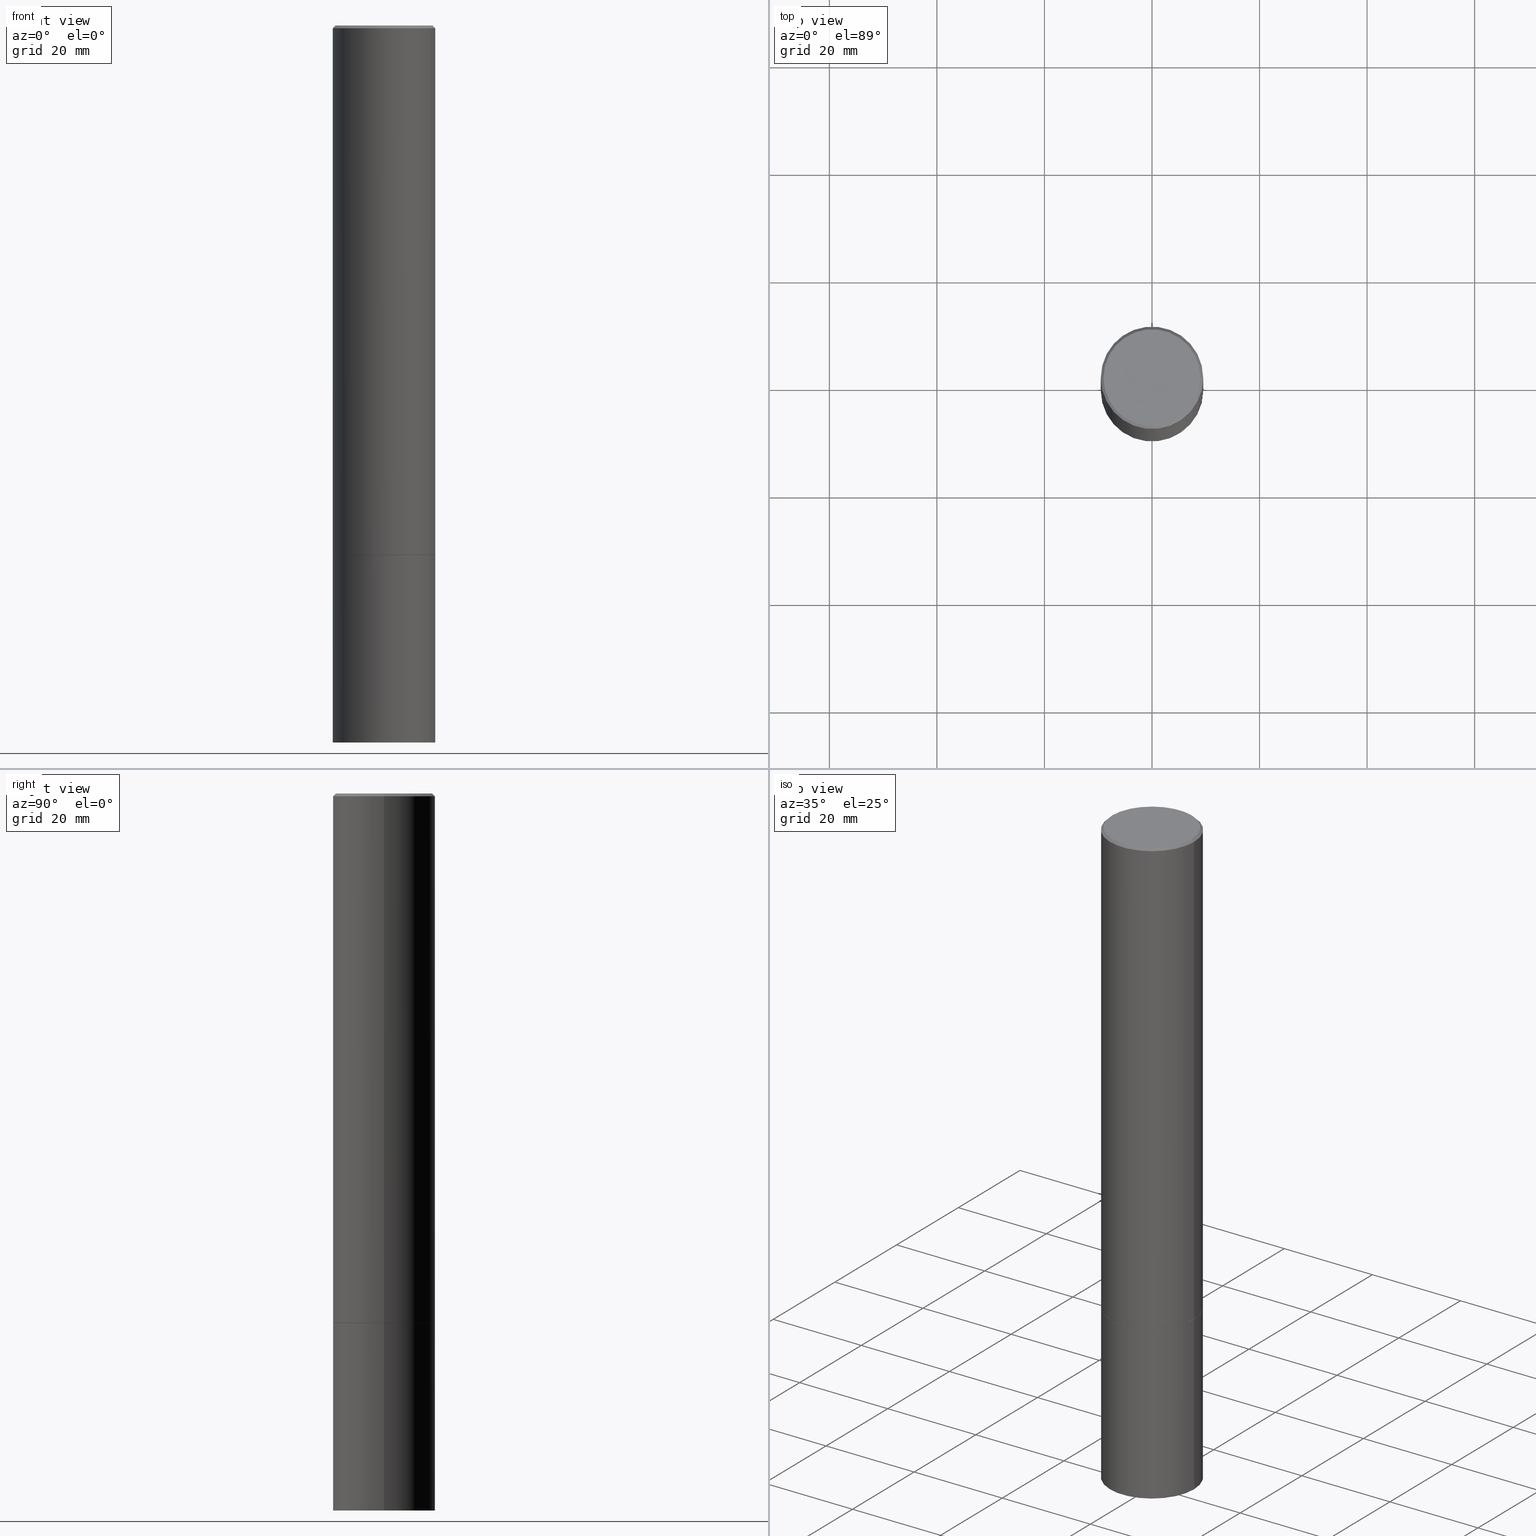
[diagram: canonical four-view strip — front | top / right | iso, engineering-drawing reading convention]
A machine part, canonical four-view strip (front | top / right | iso — engineering-drawing reading convention). The complete STEP part file that produces these views, byte-faithful:
ISO-10303-21;
HEADER;
FILE_DESCRIPTION (( 'STEP AP203' ),
    '1' );
FILE_NAME ('32277.STEP',
    '2024-02-27T14:58:54',
    ( '' ),
    ( '' ),
    'SwSTEP 2.0',
    'SolidWorks 2023',
    '' );
FILE_SCHEMA (( 'CONFIG_CONTROL_DESIGN' ));
ENDSEC;

DATA;
#1 = LINE ( 'NONE', #24, #279 ) ;
#2 = ADVANCED_FACE ( 'NONE', ( #320 ), #131, .T. ) ;
#3 = DIRECTION ( 'NONE',  ( -2.445468806185136597E-29, 3.491481338843145583E-15, 1.000000000000000000 ) ) ;
#4 = LINE ( 'NONE', #360, #346 ) ;
#5 = CARTESIAN_POINT ( 'NONE',  ( -0.3739999999999999991, -1.086676190192619278E-14, -3.875000000000000444 ) ) ;
#6 = CARTESIAN_POINT ( 'NONE',  ( 1.283871123247196713E-28, -1.833027702892651322E-14, -5.250000000000000000 ) ) ;
#7 = EDGE_CURVE ( 'NONE', #70, #92, #247, .T. ) ;
#8 = AXIS2_PLACEMENT_3D ( 'NONE', #358, #179, #80 ) ;
#9 = LOCAL_TIME ( 9, 58, 54.00000000000000000, #254 ) ;
#10 = ORIENTED_EDGE ( 'NONE', *, *, #21, .F. ) ;
#11 = DIRECTION ( 'NONE',  ( 1.000000000000000000, 0.000000000000000000, 0.000000000000000000 ) ) ;
#12 = APPROVAL_DATE_TIME ( #169, #81 ) ;
#13 = CIRCLE ( 'NONE', #164, 0.3749999999999999445 ) ;
#14 = ORIENTED_EDGE ( 'NONE', *, *, #296, .F. ) ;
#15 = DATE_TIME_ROLE ( 'classification_date' ) ;
#16 =( NAMED_UNIT ( * ) SI_UNIT ( $, .STERADIAN. ) SOLID_ANGLE_UNIT ( ) );
#17 = ORIENTED_EDGE ( 'NONE', *, *, #180, .T. ) ;
#18 = CALENDAR_DATE ( 2024, 27, 2 ) ;
#19 = CIRCLE ( 'NONE', #200, 0.3749999999999996669 ) ;
#20 = CARTESIAN_POINT ( 'NONE',  ( -0.3749999999999999445, -4.133378907627225046E-15, -3.874000000000000110 ) ) ;
#21 = EDGE_CURVE ( 'NONE', #197, #65, #19, .T. ) ;
#22 = EDGE_LOOP ( 'NONE', ( #353, #348, #51, #148 ) ) ;
#23 = PLANE ( 'NONE',  #354 ) ;
#24 = CARTESIAN_POINT ( 'NONE',  ( -0.3749999999999996669, 2.548781377355484352E-15, -0.02000000000000008715 ) ) ;
#25 = DIRECTION ( 'NONE',  ( -2.445468806185136597E-29, 3.491481338843145583E-15, 1.000000000000000000 ) ) ;
#26 = VECTOR ( 'NONE', #356, 39.37007874015748143 ) ;
#27 = EDGE_LOOP ( 'NONE', ( #90, #343, #219, #10 ) ) ;
#28 =( GEOMETRIC_REPRESENTATION_CONTEXT ( 3 ) GLOBAL_UNCERTAINTY_ASSIGNED_CONTEXT ( ( #96 ) ) GLOBAL_UNIT_ASSIGNED_CONTEXT ( ( #72, #342, #16 ) ) REPRESENTATION_CONTEXT ( 'NONE', 'WORKASPACE' ) );
#29 = EDGE_CURVE ( 'NONE', #100, #237, #292, .T. ) ;
#30 = DIRECTION ( 'NONE',  ( 1.000000000000000000, -6.982962677686269077E-15, 0.000000000000000000 ) ) ;
#31 = VECTOR ( 'NONE', #267, 39.37007874015748143 ) ;
#32 = CC_DESIGN_SECURITY_CLASSIFICATION ( #183, ( #365 ) ) ;
#33 = CALENDAR_DATE ( 2024, 27, 2 ) ;
#34 = CC_DESIGN_PERSON_AND_ORGANIZATION_ASSIGNMENT ( #196, #287, ( #314 ) ) ;
#35 = ORIENTED_EDGE ( 'NONE', *, *, #186, .F. ) ;
#36 = ORIENTED_EDGE ( 'NONE', *, *, #229, .F. ) ;
#37 = PERSON_AND_ORGANIZATION_ROLE ( 'design_owner' ) ;
#38 = ORIENTED_EDGE ( 'NONE', *, *, #318, .F. ) ;
#39 = AXIS2_PLACEMENT_3D ( 'NONE', #6, #112, #301 ) ;
#40 = LOCAL_TIME ( 9, 58, 54.00000000000000000, #195 ) ;
#41 = ADVANCED_FACE ( 'NONE', ( #355 ), #323, .T. ) ;
#42 = ORIENTED_EDGE ( 'NONE', *, *, #191, .F. ) ;
#43 = PERSON_AND_ORGANIZATION ( #335, #201 ) ;
#44 = DIRECTION ( 'NONE',  ( 0.000000000000000000, 0.000000000000000000, 1.000000000000000000 ) ) ;
#45 = ORIENTED_EDGE ( 'NONE', *, *, #229, .T. ) ;
#46 = DATE_AND_TIME ( #18, #85 ) ;
#47 = CARTESIAN_POINT ( 'NONE',  ( 9.473746155161219831E-29, -1.352599870667834608E-14, -3.874000000000000110 ) ) ;
#48 = CYLINDRICAL_SURFACE ( 'NONE', #63, 0.3749999999999998335 ) ;
#49 = ADVANCED_FACE ( 'NONE', ( #101 ), #173, .F. ) ;
#50 = AXIS2_PLACEMENT_3D ( 'NONE', #324, #149, #209 ) ;
#51 = ORIENTED_EDGE ( 'NONE', *, *, #141, .F. ) ;
#52 = FACE_OUTER_BOUND ( 'NONE', #317, .T. ) ;
#53 = FACE_OUTER_BOUND ( 'NONE', #171, .T. ) ;
#54 = CARTESIAN_POINT ( 'NONE',  ( 0.000000000000000000, 0.000000000000000000, 0.000000000000000000 ) ) ;
#55 = CARTESIAN_POINT ( 'NONE',  ( 0.3749999999999998335, -2.618611004132348439E-15, 1.828566290923475082E-29 ) ) ;
#56 = CONICAL_SURFACE ( 'NONE', #103, 0.3739999999999999991, 0.7853981633972434429 ) ;
#57 = PLANE ( 'NONE',  #67 ) ;
#58 = CC_DESIGN_APPROVAL ( #216, ( #183 ) ) ;
#59 = DIRECTION ( 'NONE',  ( -2.445468806185136877E-29, 3.491481338843145188E-15, 1.000000000000000000 ) ) ;
#60 = DIRECTION ( 'NONE',  ( 1.000000000000000000, -6.982962677686265922E-15, 4.876176775795935793E-29 ) ) ;
#61 = FACE_OUTER_BOUND ( 'NONE', #255, .T. ) ;
#62 = ADVANCED_FACE ( 'NONE', ( #53 ), #57, .F. ) ;
#63 = AXIS2_PLACEMENT_3D ( 'NONE', #54, #25, #210 ) ;
#64 = FACE_OUTER_BOUND ( 'NONE', #115, .T. ) ;
#65 = VERTEX_POINT ( 'NONE', #236 ) ;
#66 = VERTEX_POINT ( 'NONE', #155 ) ;
#67 = AXIS2_PLACEMENT_3D ( 'NONE', #328, #234, #153 ) ;
#68 = ORIENTED_EDGE ( 'NONE', *, *, #135, .F. ) ;
#69 = APPROVAL_ROLE ( '' ) ;
#70 = VERTEX_POINT ( 'NONE', #20 ) ;
#71 = ADVANCED_FACE ( 'NONE', ( #178 ), #108, .T. ) ;
#72 =( CONVERSION_BASED_UNIT ( 'INCH', #120 ) LENGTH_UNIT ( ) NAMED_UNIT ( #260 ) );
#73 = CALENDAR_DATE ( 2024, 27, 2 ) ;
#74 = DIRECTION ( 'NONE',  ( 1.000000000000000000, -6.982962677686266711E-15, 0.000000000000000000 ) ) ;
#75 = EDGE_CURVE ( 'NONE', #92, #65, #321, .T. ) ;
#76 = ORIENTED_EDGE ( 'NONE', *, *, #162, .T. ) ;
#77 = VECTOR ( 'NONE', #268, 39.37007874015748143 ) ;
#78 = DIRECTION ( 'NONE',  ( -2.445468806185136597E-29, 3.491481338843145583E-15, 1.000000000000000000 ) ) ;
#79 = CARTESIAN_POINT ( 'NONE',  ( 4.890937612370294178E-31, -6.982962677686321191E-17, -0.02000000000000008715 ) ) ;
#80 = DIRECTION ( 'NONE',  ( -1.000000000000000000, 6.982962677686266711E-15, 0.000000000000000000 ) ) ;
#81 = APPROVAL ( #313, 'UNSPECIFIED' ) ;
#82 = DIRECTION ( 'NONE',  ( -2.445468806185136597E-29, 3.491481338843145583E-15, 1.000000000000000000 ) ) ;
#83 = AXIS2_PLACEMENT_3D ( 'NONE', #334, #304, #185 ) ;
#84 = CARTESIAN_POINT ( 'NONE',  ( 0.000000000000000000, 0.000000000000000000, 0.000000000000000000 ) ) ;
#85 = LOCAL_TIME ( 9, 58, 54.00000000000000000, #118 ) ;
#86 = DIRECTION ( 'NONE',  ( 1.000000000000000000, -6.982962677686265133E-15, 0.000000000000000000 ) ) ;
#87 = CC_DESIGN_PERSON_AND_ORGANIZATION_ASSIGNMENT ( #94, #37, ( #132 ) ) ;
#88 = CLOSED_SHELL ( 'NONE', ( #359, #166, #246, #274 ) ) ;
#89 = EDGE_CURVE ( 'NONE', #237, #197, #1, .T. ) ;
#90 = ORIENTED_EDGE ( 'NONE', *, *, #144, .F. ) ;
#91 = DIRECTION ( 'NONE',  ( -2.445468806185136597E-29, 3.491481338843145583E-15, 1.000000000000000000 ) ) ;
#92 = VERTEX_POINT ( 'NONE', #102 ) ;
#93 = APPROVAL_ROLE ( '' ) ;
#94 = PERSON_AND_ORGANIZATION ( #335, #201 ) ;
#95 = AXIS2_PLACEMENT_3D ( 'NONE', #329, #82, #207 ) ;
#96 = UNCERTAINTY_MEASURE_WITH_UNIT (LENGTH_MEASURE( 1.000000000000000082E-05 ), #72, 'distance_accuracy_value', 'NONE');
#97 = ORIENTED_EDGE ( 'NONE', *, *, #186, .T. ) ;
#98 = DATE_AND_TIME ( #124, #347 ) ;
#99 = ORIENTED_EDGE ( 'NONE', *, *, #29, .T. ) ;
#100 = VERTEX_POINT ( 'NONE', #106 ) ;
#101 = FACE_OUTER_BOUND ( 'NONE', #221, .T. ) ;
#102 = CARTESIAN_POINT ( 'NONE',  ( 0.3749999999999999445, -1.614460971081069609E-14, -3.874000000000000110 ) ) ;
#103 = AXIS2_PLACEMENT_3D ( 'NONE', #157, #326, #272 ) ;
#104 = DIRECTION ( 'NONE',  ( 1.000000000000000000, -6.982962677686269077E-15, 0.000000000000000000 ) ) ;
#105 = CC_DESIGN_PERSON_AND_ORGANIZATION_ASSIGNMENT ( #249, #138, ( #365 ) ) ;
#106 = CARTESIAN_POINT ( 'NONE',  ( 0.3549999999999996492, -2.538996582575038287E-15, 8.537024980218368550E-18 ) ) ;
#107 = DIRECTION ( 'NONE',  ( 1.000000000000000000, -6.982962677686266711E-15, 0.000000000000000000 ) ) ;
#108 = CONICAL_SURFACE ( 'NONE', #142, 0.3749999999999996669, 0.7853981633974473908 ) ;
#109 = CARTESIAN_POINT ( 'NONE',  ( -0.3750000000000000555, -1.326534834937147625E-14, -3.875000000000000000 ) ) ;
#110 = DIRECTION ( 'NONE',  ( 0.7071067811865469066, -7.319954787623254468E-15, -0.7071067811865481278 ) ) ;
#111 = DIRECTION ( 'NONE',  ( -1.000000000000000000, 6.982962677686265922E-15, -4.876176775795935793E-29 ) ) ;
#112 = DIRECTION ( 'NONE',  ( -2.445468806185136597E-29, 3.491481338843145583E-15, 1.000000000000000000 ) ) ;
#113 = ORIENTED_EDGE ( 'NONE', *, *, #89, .F. ) ;
#114 = CC_DESIGN_PERSON_AND_ORGANIZATION_ASSIGNMENT ( #43, #258, ( #365 ) ) ;
#115 = EDGE_LOOP ( 'NONE', ( #285, #264 ) ) ;
#116 = COORDINATED_UNIVERSAL_TIME_OFFSET ( 5, 0, .BEHIND. ) ;
#117 = AXIS2_PLACEMENT_3D ( 'NONE', #158, #159, #273 ) ;
#118 = COORDINATED_UNIVERSAL_TIME_OFFSET ( 5, 0, .BEHIND. ) ;
#119 = CARTESIAN_POINT ( 'NONE',  ( 0.000000000000000000, 0.000000000000000000, 0.000000000000000000 ) ) ;
#120 = LENGTH_MEASURE_WITH_UNIT ( LENGTH_MEASURE( 0.02539999999999999897 ), #297 );
#121 = ORIENTED_EDGE ( 'NONE', *, *, #21, .T. ) ;
#122 = SHAPE_DEFINITION_REPRESENTATION ( #327, #251 ) ;
#123 = DIRECTION ( 'NONE',  ( -2.445468806185136597E-29, 3.491481338843145583E-15, 1.000000000000000000 ) ) ;
#124 = CALENDAR_DATE ( 2024, 27, 2 ) ;
#125 = CARTESIAN_POINT ( 'NONE',  ( -2.087702828670439639E-46, 2.980686340760894400E-32, 8.537024980200822558E-18 ) ) ;
#126 = ORIENTED_EDGE ( 'NONE', *, *, #344, .F. ) ;
#127 = ORIENTED_EDGE ( 'NONE', *, *, #29, .F. ) ;
#128 = ADVANCED_FACE ( 'NONE', ( #211 ), #238, .T. ) ;
#129 = AXIS2_PLACEMENT_3D ( 'NONE', #84, #307, #60 ) ;
#130 = AXIS2_PLACEMENT_3D ( 'NONE', #206, #78, #319 ) ;
#131 = CYLINDRICAL_SURFACE ( 'NONE', #310, 0.3749999999999998335 ) ;
#132 = PRODUCT ( '32277', '32277', '', ( #199 ) ) ;
#133 = DIRECTION ( 'NONE',  ( -2.445468806185136597E-29, 3.491481338843145583E-15, 1.000000000000000000 ) ) ;
#134 = DIRECTION ( 'NONE',  ( -2.445468806185136877E-29, 3.491481338843145188E-15, 1.000000000000000000 ) ) ;
#135 = EDGE_CURVE ( 'NONE', #92, #70, #13, .T. ) ;
#136 = CARTESIAN_POINT ( 'NONE',  ( 9.476191623967405434E-29, -1.352949018801719066E-14, -3.875000000000000444 ) ) ;
#137 = AXIS2_PLACEMENT_3D ( 'NONE', #263, #91, #309 ) ;
#138 = PERSON_AND_ORGANIZATION_ROLE ( 'creator' ) ;
#139 = PLANE ( 'NONE',  #208 ) ;
#140 = CARTESIAN_POINT ( 'NONE',  ( -0.3549999999999996492, 2.513866563967053097E-15, 8.537024980183364388E-18 ) ) ;
#141 = EDGE_CURVE ( 'NONE', #65, #197, #270, .T. ) ;
#142 = AXIS2_PLACEMENT_3D ( 'NONE', #204, #295, #298 ) ;
#143 = EDGE_LOOP ( 'NONE', ( #127, #241, #308, #113 ) ) ;
#144 = EDGE_CURVE ( 'NONE', #70, #197, #271, .T. ) ;
#145 = AXIS2_PLACEMENT_3D ( 'NONE', #136, #214, #86 ) ;
#146 = EDGE_LOOP ( 'NONE', ( #167, #76, #45, #250 ) ) ;
#147 = DATE_TIME_ROLE ( 'creation_date' ) ;
#148 = ORIENTED_EDGE ( 'NONE', *, *, #75, .F. ) ;
#149 = DIRECTION ( 'NONE',  ( -2.438088387897960049E-29, 3.491481338843145188E-15, 1.000000000000000000 ) ) ;
#150 = AXIS2_PLACEMENT_3D ( 'NONE', #332, #294, #240 ) ;
#151 = DIRECTION ( 'NONE',  ( -0.7071067811865469066, 2.468850131082250355E-15, -0.7071067811865481278 ) ) ;
#152 = PRODUCT_RELATED_PRODUCT_CATEGORY ( 'detail', '', ( #132 ) ) ;
#153 = DIRECTION ( 'NONE',  ( -1.000000000000000000, 6.982962677686265922E-15, -4.876176775795935793E-29 ) ) ;
#154 = CARTESIAN_POINT ( 'NONE',  ( 0.000000000000000000, 0.000000000000000000, 0.000000000000000000 ) ) ;
#155 = CARTESIAN_POINT ( 'NONE',  ( 0.3739999999999999991, -1.614111822947185466E-14, -3.875000000000000444 ) ) ;
#156 = ADVANCED_FACE ( 'NONE', ( #235 ), #56, .T. ) ;
#157 = CARTESIAN_POINT ( 'NONE',  ( 9.476191623967405434E-29, -1.352949018801719066E-14, -3.875000000000000444 ) ) ;
#158 = CARTESIAN_POINT ( 'NONE',  ( 1.283871123247196713E-28, -1.833027702892651322E-14, -5.250000000000000000 ) ) ;
#159 = DIRECTION ( 'NONE',  ( -2.445468806185136597E-29, 3.491481338843145583E-15, 1.000000000000000000 ) ) ;
#160 = COORDINATED_UNIVERSAL_TIME_OFFSET ( 5, 0, .BEHIND. ) ;
#161 = CLOSED_SHELL ( 'NONE', ( #128, #2, #41, #71, #205, #156, #49, #62 ) ) ;
#162 = EDGE_CURVE ( 'NONE', #293, #66, #300, .T. ) ;
#163 = LINE ( 'NONE', #188, #176 ) ;
#164 = AXIS2_PLACEMENT_3D ( 'NONE', #181, #133, #30 ) ;
#165 = LOCAL_TIME ( 9, 58, 54.00000000000000000, #160 ) ;
#166 = ADVANCED_FACE ( 'NONE', ( #52 ), #23, .T. ) ;
#167 = ORIENTED_EDGE ( 'NONE', *, *, #337, .F. ) ;
#168 = ORIENTED_EDGE ( 'NONE', *, *, #296, .T. ) ;
#169 = DATE_AND_TIME ( #283, #9 ) ;
#170 = APPROVAL_PERSON_ORGANIZATION ( #231, #325, #223 ) ;
#171 = EDGE_LOOP ( 'NONE', ( #340, #99 ) ) ;
#172 = PERSON_AND_ORGANIZATION ( #335, #201 ) ;
#173 = PLANE ( 'NONE',  #50 ) ;
#174 = DIRECTION ( 'NONE',  ( -2.445468806185136597E-29, 3.491481338843145583E-15, 1.000000000000000000 ) ) ;
#175 = DIRECTION ( 'NONE',  ( -2.445468806185136597E-29, 3.491481338843145583E-15, 1.000000000000000000 ) ) ;
#176 = VECTOR ( 'NONE', #110, 39.37007874015748143 ) ;
#177 = CC_DESIGN_DATE_AND_TIME_ASSIGNMENT ( #98, #147, ( #314 ) ) ;
#178 = FACE_OUTER_BOUND ( 'NONE', #198, .T. ) ;
#179 = DIRECTION ( 'NONE',  ( 2.445468806185136597E-29, -3.491481338843145583E-15, -1.000000000000000000 ) ) ;
#180 = EDGE_CURVE ( 'NONE', #312, #299, #184, .T. ) ;
#181 = CARTESIAN_POINT ( 'NONE',  ( 9.473746155161219831E-29, -1.352599870667834608E-14, -3.874000000000000110 ) ) ;
#182 = VECTOR ( 'NONE', #134, 39.37007874015748143 ) ;
#183 = SECURITY_CLASSIFICATION ( '', '', #350 ) ;
#184 = LINE ( 'NONE', #305, #31 ) ;
#185 = DIRECTION ( 'NONE',  ( 1.000000000000000000, -6.982962677686266711E-15, 0.000000000000000000 ) ) ;
#186 = EDGE_CURVE ( 'NONE', #364, #190, #265, .T. ) ;
#187 = CIRCLE ( 'NONE', #39, 0.3750000000000000555 ) ;
#188 = CARTESIAN_POINT ( 'NONE',  ( 0.3749999999999996669, -2.642516375941185662E-15, -0.02000000000000008715 ) ) ;
#189 = DIRECTION ( 'NONE',  ( 2.438088387897960049E-29, -3.491481338843145188E-15, -1.000000000000000000 ) ) ;
#190 = VERTEX_POINT ( 'NONE', #361 ) ;
#191 = EDGE_CURVE ( 'NONE', #237, #100, #261, .T. ) ;
#192 = ORIENTED_EDGE ( 'NONE', *, *, #259, .F. ) ;
#193 = AXIS2_PLACEMENT_3D ( 'NONE', #243, #3, #107 ) ;
#194 = APPLICATION_PROTOCOL_DEFINITION ( 'international standard', 'config_control_design', 1994, #215 ) ;
#195 = COORDINATED_UNIVERSAL_TIME_OFFSET ( 5, 0, .BEHIND. ) ;
#196 = PERSON_AND_ORGANIZATION ( #335, #201 ) ;
#197 = VERTEX_POINT ( 'NONE', #366 ) ;
#198 = EDGE_LOOP ( 'NONE', ( #192, #42, #349, #121 ) ) ;
#199 = MECHANICAL_CONTEXT ( 'NONE', #215, 'mechanical' ) ;
#200 = AXIS2_PLACEMENT_3D ( 'NONE', #79, #123, #74 ) ;
#201 = ORGANIZATION ( 'UNSPECIFIED', 'UNSPECIFIED', '' ) ;
#202 = CARTESIAN_POINT ( 'NONE',  ( -0.3739999999999999991, -1.087206035627441518E-14, -3.875000000000000444 ) ) ;
#203 = DIRECTION ( 'NONE',  ( 1.000000000000000000, -6.982962677686265922E-15, 4.876231632511992667E-29 ) ) ;
#204 = CARTESIAN_POINT ( 'NONE',  ( 4.890937612370294178E-31, -6.982962677686321191E-17, -0.02000000000000008715 ) ) ;
#205 = ADVANCED_FACE ( 'NONE', ( #291 ), #48, .T. ) ;
#206 = CARTESIAN_POINT ( 'NONE',  ( 9.476191623967404313E-29, -1.352949018801718908E-14, -3.875000000000000000 ) ) ;
#207 = DIRECTION ( 'NONE',  ( 1.000000000000000000, -6.982962677686265133E-15, 0.000000000000000000 ) ) ;
#208 = AXIS2_PLACEMENT_3D ( 'NONE', #275, #302, #244 ) ;
#209 = DIRECTION ( 'NONE',  ( 1.000000000000000000, -6.982962677686265922E-15, 4.876176775795935793E-29 ) ) ;
#210 = DIRECTION ( 'NONE',  ( 1.000000000000000000, -6.982962677686265922E-15, 4.876176775795935793E-29 ) ) ;
#211 = FACE_OUTER_BOUND ( 'NONE', #277, .T. ) ;
#212 = AXIS2_PLACEMENT_3D ( 'NONE', #125, #232, #203 ) ;
#213 = CARTESIAN_POINT ( 'NONE',  ( -0.3749999999999998335, 2.664535259100374514E-15, -1.844600658845588757E-29 ) ) ;
#214 = DIRECTION ( 'NONE',  ( -2.445468806185136597E-29, 3.491481338843145583E-15, 1.000000000000000000 ) ) ;
#215 = APPLICATION_CONTEXT ( 'configuration controlled 3d designs of mechanical parts and assemblies' ) ;
#216 = APPROVAL ( #256, 'UNSPECIFIED' ) ;
#217 = CIRCLE ( 'NONE', #130, 0.3750000000000000555 ) ;
#218 = CC_DESIGN_APPROVAL ( #81, ( #314 ) ) ;
#219 = ORIENTED_EDGE ( 'NONE', *, *, #75, .T. ) ;
#220 = DATE_AND_TIME ( #33, #165 ) ;
#221 = EDGE_LOOP ( 'NONE', ( #14, #288 ) ) ;
#222 = CYLINDRICAL_SURFACE ( 'NONE', #137, 0.3750000000000000555 ) ;
#223 = APPROVAL_ROLE ( '' ) ;
#224 = PERSON_AND_ORGANIZATION_ROLE ( 'classification_officer' ) ;
#225 = CC_DESIGN_APPROVAL ( #325, ( #365 ) ) ;
#226 = ORIENTED_EDGE ( 'NONE', *, *, #303, .F. ) ;
#227 = MANIFOLD_SOLID_BREP ( 'Body-Move/Copy2[1]', #88 ) ;
#228 = APPLICATION_PROTOCOL_DEFINITION ( 'international standard', 'config_control_design', 1994, #333 ) ;
#229 = EDGE_CURVE ( 'NONE', #66, #92, #4, .T. ) ;
#230 = EDGE_LOOP ( 'NONE', ( #266, #17, #226, #35 ) ) ;
#231 = PERSON_AND_ORGANIZATION ( #335, #201 ) ;
#232 = DIRECTION ( 'NONE',  ( -2.445468806185136597E-29, 3.491481338843145583E-15, 1.000000000000000000 ) ) ;
#233 = AXIS2_PLACEMENT_3D ( 'NONE', #322, #174, #239 ) ;
#234 = DIRECTION ( 'NONE',  ( 2.438088387897960049E-29, -3.491481338843145188E-15, -1.000000000000000000 ) ) ;
#235 = FACE_OUTER_BOUND ( 'NONE', #146, .T. ) ;
#236 = CARTESIAN_POINT ( 'NONE',  ( 0.3749999999999996669, -2.642516375941185662E-15, -0.02000000000000008715 ) ) ;
#237 = VERTEX_POINT ( 'NONE', #140 ) ;
#238 = CONICAL_SURFACE ( 'NONE', #95, 0.3739999999999999991, 0.7853981633972434429 ) ;
#239 = DIRECTION ( 'NONE',  ( 1.000000000000000000, -6.982962677686265922E-15, 4.876231632511992667E-29 ) ) ;
#240 = DIRECTION ( 'NONE',  ( 1.000000000000000000, -6.982962677686265133E-15, 0.000000000000000000 ) ) ;
#241 = ORIENTED_EDGE ( 'NONE', *, *, #259, .T. ) ;
#242 = LINE ( 'NONE', #202, #26 ) ;
#243 = CARTESIAN_POINT ( 'NONE',  ( 4.890937612370294178E-31, -6.982962677686321191E-17, -0.02000000000000008715 ) ) ;
#244 = DIRECTION ( 'NONE',  ( -1.000000000000000000, 6.982962677686265922E-15, -4.876176775795935793E-29 ) ) ;
#245 = CYLINDRICAL_SURFACE ( 'NONE', #129, 0.3750000000000000555 ) ;
#246 = ADVANCED_FACE ( 'NONE', ( #64 ), #139, .F. ) ;
#247 = CIRCLE ( 'NONE', #331, 0.3749999999999999445 ) ;
#248 = FACE_OUTER_BOUND ( 'NONE', #230, .T. ) ;
#249 = PERSON_AND_ORGANIZATION ( #335, #201 ) ;
#250 = ORIENTED_EDGE ( 'NONE', *, *, #7, .F. ) ;
#251 = ADVANCED_BREP_SHAPE_REPRESENTATION ( '32277', ( #227, #352, #338 ), #28 ) ;
#252 = ORIENTED_EDGE ( 'NONE', *, *, #276, .F. ) ;
#253 = DATE_AND_TIME ( #73, #40 ) ;
#254 = COORDINATED_UNIVERSAL_TIME_OFFSET ( 5, 0, .BEHIND. ) ;
#255 = EDGE_LOOP ( 'NONE', ( #345, #290, #97, #126 ) ) ;
#256 = APPROVAL_STATUS ( 'not_yet_approved' ) ;
#257 = ORIENTED_EDGE ( 'NONE', *, *, #337, .T. ) ;
#258 = PERSON_AND_ORGANIZATION_ROLE ( 'design_supplier' ) ;
#259 = EDGE_CURVE ( 'NONE', #100, #65, #163, .T. ) ;
#260 = DIMENSIONAL_EXPONENTS ( 1.000000000000000000, 0.000000000000000000, 0.000000000000000000, 0.000000000000000000, 0.000000000000000000, 0.000000000000000000, 0.000000000000000000 ) ;
#261 = CIRCLE ( 'NONE', #233, 0.3549999999999996492 ) ;
#262 = DIRECTION ( 'NONE',  ( -2.445468806185136597E-29, 3.491481338843145583E-15, 1.000000000000000000 ) ) ;
#263 = CARTESIAN_POINT ( 'NONE',  ( 0.000000000000000000, 0.000000000000000000, 0.000000000000000000 ) ) ;
#264 = ORIENTED_EDGE ( 'NONE', *, *, #344, .T. ) ;
#265 = LINE ( 'NONE', #330, #182 ) ;
#266 = ORIENTED_EDGE ( 'NONE', *, *, #276, .T. ) ;
#267 = DIRECTION ( 'NONE',  ( -2.445468806185136877E-29, 3.491481338843145188E-15, 1.000000000000000000 ) ) ;
#268 = DIRECTION ( 'NONE',  ( -2.445468806185136877E-29, 3.491481338843145188E-15, 1.000000000000000000 ) ) ;
#269 = CC_DESIGN_PERSON_AND_ORGANIZATION_ASSIGNMENT ( #172, #224, ( #183 ) ) ;
#270 = CIRCLE ( 'NONE', #193, 0.3749999999999996669 ) ;
#271 = LINE ( 'NONE', #213, #286 ) ;
#272 = DIRECTION ( 'NONE',  ( 1.000000000000000000, -6.982962677686265133E-15, 0.000000000000000000 ) ) ;
#273 = DIRECTION ( 'NONE',  ( 1.000000000000000000, -6.982962677686261189E-15, 0.000000000000000000 ) ) ;
#274 = ADVANCED_FACE ( 'NONE', ( #61 ), #245, .T. ) ;
#275 = CARTESIAN_POINT ( 'NONE',  ( 2.618611004132444680E-15, 0.3749999999999865108, -3.875000000000001332 ) ) ;
#276 = EDGE_CURVE ( 'NONE', #364, #312, #280, .T. ) ;
#277 = EDGE_LOOP ( 'NONE', ( #168, #257, #68, #36 ) ) ;
#278 = APPROVAL_DATE_TIME ( #220, #325 ) ;
#279 = VECTOR ( 'NONE', #151, 39.37007874015748143 ) ;
#280 = CIRCLE ( 'NONE', #117, 0.3750000000000000555 ) ;
#281 = APPROVAL_PERSON_ORGANIZATION ( #351, #81, #69 ) ;
#282 = CARTESIAN_POINT ( 'NONE',  ( 0.3750000000000000555, -2.094888803305886324E-14, -5.250000000000000000 ) ) ;
#283 = CALENDAR_DATE ( 2024, 27, 2 ) ;
#284 = CC_DESIGN_DATE_AND_TIME_ASSIGNMENT ( #253, #15, ( #183 ) ) ;
#285 = ORIENTED_EDGE ( 'NONE', *, *, #303, .T. ) ;
#286 = VECTOR ( 'NONE', #59, 39.37007874015748143 ) ;
#287 = PERSON_AND_ORGANIZATION_ROLE ( 'creator' ) ;
#288 = ORIENTED_EDGE ( 'NONE', *, *, #162, .F. ) ;
#289 = PERSON_AND_ORGANIZATION ( #335, #201 ) ;
#290 = ORIENTED_EDGE ( 'NONE', *, *, #318, .T. ) ;
#291 = FACE_OUTER_BOUND ( 'NONE', #27, .T. ) ;
#292 = CIRCLE ( 'NONE', #212, 0.3549999999999996492 ) ;
#293 = VERTEX_POINT ( 'NONE', #5 ) ;
#294 = DIRECTION ( 'NONE',  ( -2.445468806185136597E-29, 3.491481338843145583E-15, 1.000000000000000000 ) ) ;
#295 = DIRECTION ( 'NONE',  ( 2.445468806185136597E-29, -3.491481338843145583E-15, -1.000000000000000000 ) ) ;
#296 = EDGE_CURVE ( 'NONE', #66, #293, #336, .T. ) ;
#297 =( LENGTH_UNIT ( ) NAMED_UNIT ( * ) SI_UNIT ( $, .METRE. ) );
#298 = DIRECTION ( 'NONE',  ( -1.000000000000000000, 6.982962677686266711E-15, 0.000000000000000000 ) ) ;
#299 = VERTEX_POINT ( 'NONE', #109 ) ;
#300 = CIRCLE ( 'NONE', #150, 0.3739999999999999991 ) ;
#301 = DIRECTION ( 'NONE',  ( 1.000000000000000000, -6.982962677686261189E-15, 0.000000000000000000 ) ) ;
#302 = DIRECTION ( 'NONE',  ( 2.438088387897960049E-29, -3.491481338843145188E-15, -1.000000000000000000 ) ) ;
#303 = EDGE_CURVE ( 'NONE', #190, #299, #363, .T. ) ;
#304 = DIRECTION ( 'NONE',  ( -2.445468806185136597E-29, 3.491481338843145583E-15, 1.000000000000000000 ) ) ;
#305 = CARTESIAN_POINT ( 'NONE',  ( -0.3750000000000000555, 2.664535259100376091E-15, -1.844600658845589598E-29 ) ) ;
#306 = CARTESIAN_POINT ( 'NONE',  ( -0.3750000000000000555, -1.326534834937147625E-14, -5.250000000000000000 ) ) ;
#307 = DIRECTION ( 'NONE',  ( -2.445468806185136597E-29, 3.491481338843145583E-15, 1.000000000000000000 ) ) ;
#308 = ORIENTED_EDGE ( 'NONE', *, *, #141, .T. ) ;
#309 = DIRECTION ( 'NONE',  ( 1.000000000000000000, -6.982962677686265922E-15, 4.876176775795935793E-29 ) ) ;
#310 = AXIS2_PLACEMENT_3D ( 'NONE', #154, #262, #357 ) ;
#311 = APPROVAL_PERSON_ORGANIZATION ( #289, #216, #93 ) ;
#312 = VERTEX_POINT ( 'NONE', #306 ) ;
#313 = APPROVAL_STATUS ( 'not_yet_approved' ) ;
#314 = PRODUCT_DEFINITION ( 'UNKNOWN', '', #365, #315 ) ;
#315 = DESIGN_CONTEXT ( 'detailed design', #333, 'design' ) ;
#316 = APPROVAL_DATE_TIME ( #46, #216 ) ;
#317 = EDGE_LOOP ( 'NONE', ( #252, #38 ) ) ;
#318 = EDGE_CURVE ( 'NONE', #312, #364, #187, .T. ) ;
#319 = DIRECTION ( 'NONE',  ( 1.000000000000000000, -6.982962677686266711E-15, 0.000000000000000000 ) ) ;
#320 = FACE_OUTER_BOUND ( 'NONE', #22, .T. ) ;
#321 = LINE ( 'NONE', #55, #77 ) ;
#322 = CARTESIAN_POINT ( 'NONE',  ( -2.087702828670439639E-46, 2.980686340760894400E-32, 8.537024980200822558E-18 ) ) ;
#323 = CONICAL_SURFACE ( 'NONE', #8, 0.3749999999999996669, 0.7853981633974473908 ) ;
#324 = CARTESIAN_POINT ( 'NONE',  ( 9.476191623967405434E-29, -1.352949018801719066E-14, -3.875000000000000444 ) ) ;
#325 = APPROVAL ( #341, 'UNSPECIFIED' ) ;
#326 = DIRECTION ( 'NONE',  ( -2.445468806185136597E-29, 3.491481338843145583E-15, 1.000000000000000000 ) ) ;
#327 = PRODUCT_DEFINITION_SHAPE ( 'NONE', 'NONE',  #314 ) ;
#328 = CARTESIAN_POINT ( 'NONE',  ( 2.478951750578621842E-15, 0.3549999999999996492, -1.235207362799214833E-15 ) ) ;
#329 = CARTESIAN_POINT ( 'NONE',  ( 9.476191623967405434E-29, -1.352949018801719066E-14, -3.875000000000000444 ) ) ;
#330 = CARTESIAN_POINT ( 'NONE',  ( 0.3750000000000000555, -2.618611004132350016E-15, 1.828566290923476203E-29 ) ) ;
#331 = AXIS2_PLACEMENT_3D ( 'NONE', #47, #175, #104 ) ;
#332 = CARTESIAN_POINT ( 'NONE',  ( 9.476191623967405434E-29, -1.352949018801719066E-14, -3.875000000000000444 ) ) ;
#333 = APPLICATION_CONTEXT ( 'configuration controlled 3d designs of mechanical parts and assemblies' ) ;
#334 = CARTESIAN_POINT ( 'NONE',  ( 9.476191623967404313E-29, -1.352949018801718908E-14, -3.875000000000000000 ) ) ;
#335 = PERSON ( 'UNSPECIFIED', 'UNSPECIFIED', 'UNSPECIFIED', ('UNSPECIFIED'), ('UNSPECIFIED'), ('UNSPECIFIED') ) ;
#336 = CIRCLE ( 'NONE', #145, 0.3739999999999999991 ) ;
#337 = EDGE_CURVE ( 'NONE', #293, #70, #242, .T. ) ;
#338 = AXIS2_PLACEMENT_3D ( 'NONE', #119, #44, #11 ) ;
#339 = DIRECTION ( 'NONE',  ( 0.7071067811864026886, -2.468850131080739687E-15, 0.7071067811866923458 ) ) ;
#340 = ORIENTED_EDGE ( 'NONE', *, *, #191, .T. ) ;
#341 = APPROVAL_STATUS ( 'not_yet_approved' ) ;
#342 =( NAMED_UNIT ( * ) PLANE_ANGLE_UNIT ( ) SI_UNIT ( $, .RADIAN. ) );
#343 = ORIENTED_EDGE ( 'NONE', *, *, #7, .T. ) ;
#344 = EDGE_CURVE ( 'NONE', #299, #190, #217, .T. ) ;
#345 = ORIENTED_EDGE ( 'NONE', *, *, #180, .F. ) ;
#346 = VECTOR ( 'NONE', #339, 39.37007874015748143 ) ;
#347 = LOCAL_TIME ( 9, 58, 54.00000000000000000, #116 ) ;
#348 = ORIENTED_EDGE ( 'NONE', *, *, #144, .T. ) ;
#349 = ORIENTED_EDGE ( 'NONE', *, *, #89, .T. ) ;
#350 = SECURITY_CLASSIFICATION_LEVEL ( 'unclassified' ) ;
#351 = PERSON_AND_ORGANIZATION ( #335, #201 ) ;
#352 = MANIFOLD_SOLID_BREP ( 'Body-Move/Copy2[2]', #161 ) ;
#353 = ORIENTED_EDGE ( 'NONE', *, *, #135, .T. ) ;
#354 = AXIS2_PLACEMENT_3D ( 'NONE', #362, #189, #111 ) ;
#355 = FACE_OUTER_BOUND ( 'NONE', #143, .T. ) ;
#356 = DIRECTION ( 'NONE',  ( -0.7071067811864026886, 7.493145998869830357E-15, 0.7071067811866923458 ) ) ;
#357 = DIRECTION ( 'NONE',  ( 1.000000000000000000, -6.982962677686265922E-15, 4.876176775795935793E-29 ) ) ;
#358 = CARTESIAN_POINT ( 'NONE',  ( 4.890937612370294178E-31, -6.982962677686321191E-17, -0.02000000000000008715 ) ) ;
#359 = ADVANCED_FACE ( 'NONE', ( #248 ), #222, .T. ) ;
#360 = CARTESIAN_POINT ( 'NONE',  ( 0.3739999999999999991, -1.614111822947185466E-14, -3.875000000000000444 ) ) ;
#361 = CARTESIAN_POINT ( 'NONE',  ( 0.3750000000000000555, -1.614810119214954068E-14, -3.875000000000000000 ) ) ;
#362 = CARTESIAN_POINT ( 'NONE',  ( 2.618611004132478601E-15, 0.3749999999999817368, -5.250000000000000888 ) ) ;
#363 = CIRCLE ( 'NONE', #83, 0.3750000000000000555 ) ;
#364 = VERTEX_POINT ( 'NONE', #282 ) ;
#365 = PRODUCT_DEFINITION_FORMATION_WITH_SPECIFIED_SOURCE ( 'ANY', '', #132, .NOT_KNOWN. ) ;
#366 = CARTESIAN_POINT ( 'NONE',  ( -0.3749999999999996669, 2.548781377355484352E-15, -0.02000000000000008715 ) ) ;
ENDSEC;
END-ISO-10303-21;
